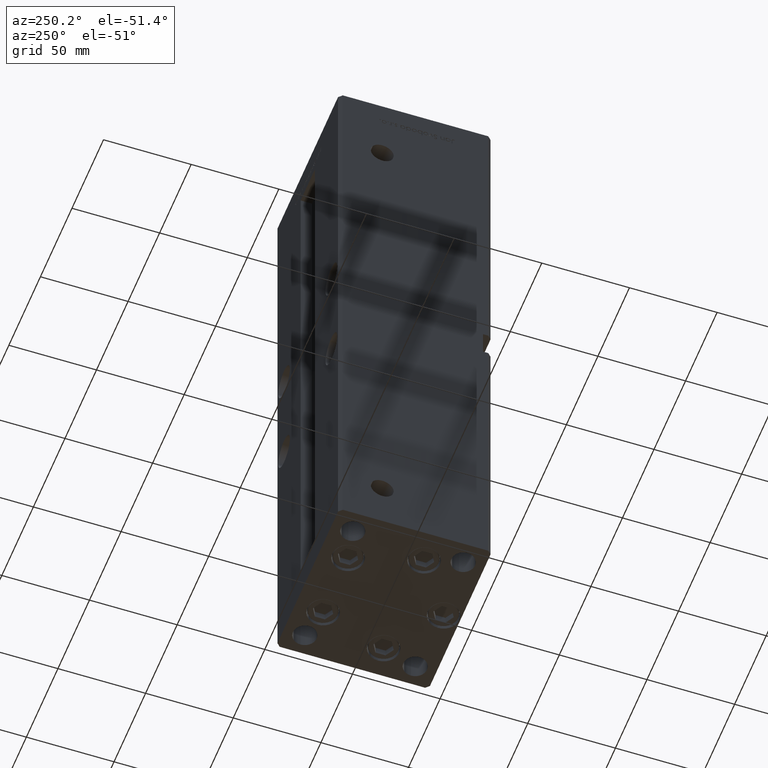
[diagram: clean part render]
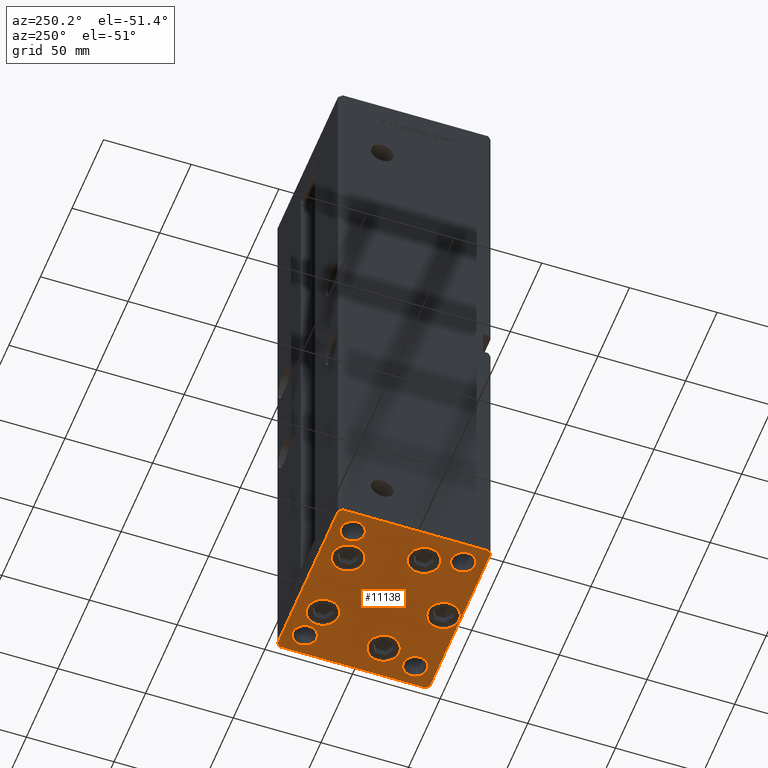
[diagram: same view with one face highlighted and labeled with its STEP entity id]
A machine part, auxiliary view. The second image highlights one B-rep face of the part: STEP entity #11138.
In plain terms, the highlighted planar face has unit normal (0, 0, -1).
Its self-contained STEP definition (entity closure, byte-faithful):
#16 = VERTEX_POINT ( 'NONE', #31558 ) ;
#497 = VERTEX_POINT ( 'NONE', #23567 ) ;
#887 = FACE_BOUND ( 'NONE', #1947, .T. ) ;
#1203 = AXIS2_PLACEMENT_3D ( 'NONE', #43583, #40601, #19136 ) ;
#1256 = ORIENTED_EDGE ( 'NONE', *, *, #10302, .T. ) ;
#1413 = FACE_BOUND ( 'NONE', #30612, .T. ) ;
#1720 = CARTESIAN_POINT ( 'NONE',  ( -50.00000000000000711, 41.49999999999995026, 0.000000000000000000 ) ) ;
#1736 = EDGE_CURVE ( 'NONE', #32446, #43627, #49318, .T. ) ;
#1855 = EDGE_LOOP ( 'NONE', ( #22564, #25273, #41971, #17480, #34941, #20006, #49058, #42830 ) ) ;
#1901 = AXIS2_PLACEMENT_3D ( 'NONE', #1939, #18329, #47078 ) ;
#1937 = VERTEX_POINT ( 'NONE', #29277 ) ;
#1939 = CARTESIAN_POINT ( 'NONE',  ( 19.82068048781373193, 27.62500000000000000, 0.000000000000000000 ) ) ;
#1947 = EDGE_LOOP ( 'NONE', ( #41723, #1256 ) ) ;
#2015 = VERTEX_POINT ( 'NONE', #52942 ) ;
#2156 = CIRCLE ( 'NONE', #13324, 6.749999999999999112 ) ;
#2504 = ORIENTED_EDGE ( 'NONE', *, *, #30601, .T. ) ;
#2887 = DIRECTION ( 'NONE',  ( 0.000000000000000000, -0.000000000000000000, -1.000000000000000000 ) ) ;
#3227 = CARTESIAN_POINT ( 'NONE',  ( 9.000000000000003553, -34.00000000000000000, 0.000000000000000000 ) ) ;
#3575 = AXIS2_PLACEMENT_3D ( 'NONE', #26302, #25781, #43231 ) ;
#3762 = CARTESIAN_POINT ( 'NONE',  ( -10.82068048781373903, 27.62499999999999645, 0.000000000000000000 ) ) ;
#3888 = ORIENTED_EDGE ( 'NONE', *, *, #6793, .T. ) ;
#4565 = CARTESIAN_POINT ( 'NONE',  ( 28.82068048781372838, 27.62500000000000000, 0.000000000000000000 ) ) ;
#4859 = EDGE_CURVE ( 'NONE', #15288, #27219, #27102, .T. ) ;
#4915 = CARTESIAN_POINT ( 'NONE',  ( 32.05550741379015278, -11.33333333333333037, 0.000000000000000000 ) ) ;
#4927 = FACE_BOUND ( 'NONE', #31506, .T. ) ;
#4986 = EDGE_CURVE ( 'NONE', #16297, #48557, #31389, .T. ) ;
#5112 = EDGE_CURVE ( 'NONE', #47752, #39421, #12550, .T. ) ;
#5453 = CARTESIAN_POINT ( 'NONE',  ( 0.000000000000000000, 0.000000000000000000, 0.000000000000000000 ) ) ;
#5545 = ORIENTED_EDGE ( 'NONE', *, *, #45504, .T. ) ;
#5981 = EDGE_CURVE ( 'NONE', #43627, #32446, #43236, .T. ) ;
#6264 = CARTESIAN_POINT ( 'NONE',  ( -47.99999999999999289, -43.50000000000001421, 0.000000000000000000 ) ) ;
#6296 = CARTESIAN_POINT ( 'NONE',  ( -38.00000000000000000, 31.50000000000000000, 0.000000000000000000 ) ) ;
#6341 = CARTESIAN_POINT ( 'NONE',  ( 50.00000000000000000, -41.49999999999999289, 0.000000000000000000 ) ) ;
#6368 = EDGE_CURVE ( 'NONE', #497, #12192, #12323, .T. ) ;
#6630 = CARTESIAN_POINT ( 'NONE',  ( -41.05550741379015278, -11.33333333333333925, 0.000000000000000000 ) ) ;
#6793 = EDGE_CURVE ( 'NONE', #28546, #16, #34418, .T. ) ;
#7060 = EDGE_CURVE ( 'NONE', #36574, #23872, #12162, .T. ) ;
#7642 = DIRECTION ( 'NONE',  ( 1.000000000000000000, 0.000000000000000000, 0.000000000000000000 ) ) ;
#7890 = EDGE_CURVE ( 'NONE', #23872, #41104, #22074, .T. ) ;
#8304 = EDGE_CURVE ( 'NONE', #37842, #12811, #47524, .T. ) ;
#8729 = ORIENTED_EDGE ( 'NONE', *, *, #12973, .F. ) ;
#8743 = CARTESIAN_POINT ( 'NONE',  ( 38.00000000000000000, 31.49999999999999289, 0.000000000000000000 ) ) ;
#9109 = AXIS2_PLACEMENT_3D ( 'NONE', #48449, #37152, #36346 ) ;
#9209 = DIRECTION ( 'NONE',  ( 0.000000000000000000, -0.000000000000000000, -1.000000000000000000 ) ) ;
#9484 = FACE_BOUND ( 'NONE', #16937, .T. ) ;
#9698 = DIRECTION ( 'NONE',  ( 0.000000000000000000, -0.000000000000000000, -1.000000000000000000 ) ) ;
#10302 = EDGE_CURVE ( 'NONE', #27219, #15288, #40458, .T. ) ;
#10742 = AXIS2_PLACEMENT_3D ( 'NONE', #8743, #21080, #42032 ) ;
#10813 = AXIS2_PLACEMENT_3D ( 'NONE', #24264, #52762, #7642 ) ;
#11138 = ADVANCED_FACE ( 'NONE', ( #25314, #14038, #9484, #26106, #50311, #1413, #50836, #4927, #37682, #887 ), #13780, .T. ) ;
#11202 = EDGE_CURVE ( 'NONE', #45479, #16494, #35244, .T. ) ;
#11244 = CIRCLE ( 'NONE', #19840, 6.749999999999999112 ) ;
#12162 = LINE ( 'NONE', #16453, #14684 ) ;
#12192 = VERTEX_POINT ( 'NONE', #34466 ) ;
#12323 = CIRCLE ( 'NONE', #26040, 9.000000000000001776 ) ;
#12550 = CIRCLE ( 'NONE', #19393, 9.000000000000000000 ) ;
#12811 = VERTEX_POINT ( 'NONE', #40683 ) ;
#12965 = EDGE_LOOP ( 'NONE', ( #5545, #3888 ) ) ;
#12973 = EDGE_CURVE ( 'NONE', #47787, #2015, #11244, .T. ) ;
#12979 = CARTESIAN_POINT ( 'NONE',  ( -50.00000000000000000, -41.50000000000000000, 0.000000000000000000 ) ) ;
#13324 = AXIS2_PLACEMENT_3D ( 'NONE', #14153, #25704, #30256 ) ;
#13372 = AXIS2_PLACEMENT_3D ( 'NONE', #16668, #45413, #14161 ) ;
#13780 = PLANE ( 'NONE',  #21536 ) ;
#14038 = FACE_BOUND ( 'NONE', #48034, .T. ) ;
#14153 = CARTESIAN_POINT ( 'NONE',  ( -38.00000000000000000, 31.50000000000000000, 0.000000000000000000 ) ) ;
#14161 = DIRECTION ( 'NONE',  ( 1.000000000000000000, 0.000000000000000000, 0.000000000000000000 ) ) ;
#14194 = EDGE_LOOP ( 'NONE', ( #2504, #42009 ) ) ;
#14366 = AXIS2_PLACEMENT_3D ( 'NONE', #22460, #35082, #38851 ) ;
#14684 = VECTOR ( 'NONE', #40618, 1000.000000000000000 ) ;
#14915 = DIRECTION ( 'NONE',  ( -1.003213576468515193E-15, 1.000000000000000000, 0.000000000000000000 ) ) ;
#15157 = VECTOR ( 'NONE', #43410, 1000.000000000000114 ) ;
#15288 = VERTEX_POINT ( 'NONE', #45906 ) ;
#15560 = DIRECTION ( 'NONE',  ( 0.000000000000000000, -0.000000000000000000, -1.000000000000000000 ) ) ;
#15985 = LINE ( 'NONE', #20546, #47927 ) ;
#16097 = ORIENTED_EDGE ( 'NONE', *, *, #29030, .F. ) ;
#16297 = VERTEX_POINT ( 'NONE', #28397 ) ;
#16453 = CARTESIAN_POINT ( 'NONE',  ( 47.99999999999990763, 43.50000000000000000, 0.000000000000000000 ) ) ;
#16494 = VERTEX_POINT ( 'NONE', #30246 ) ;
#16668 = CARTESIAN_POINT ( 'NONE',  ( 4.163799117101000559E-15, -34.00000000000000000, 0.000000000000000000 ) ) ;
#16936 = CIRCLE ( 'NONE', #14366, 6.749999999999999112 ) ;
#16937 = EDGE_LOOP ( 'NONE', ( #20540, #46685 ) ) ;
#17480 = ORIENTED_EDGE ( 'NONE', *, *, #27488, .T. ) ;
#17529 = CARTESIAN_POINT ( 'NONE',  ( -50.00000000000000711, 41.49999999999995026, 0.000000000000000000 ) ) ;
#17659 = AXIS2_PLACEMENT_3D ( 'NONE', #4915, #9209, #21293 ) ;
#18023 = CARTESIAN_POINT ( 'NONE',  ( 31.25000000000000000, 31.49999999999999289, 0.000000000000000000 ) ) ;
#18329 = DIRECTION ( 'NONE',  ( 0.000000000000000000, -0.000000000000000000, -1.000000000000000000 ) ) ;
#18624 = CIRCLE ( 'NONE', #25477, 9.000000000000000000 ) ;
#18695 = AXIS2_PLACEMENT_3D ( 'NONE', #42221, #34153, #33625 ) ;
#18842 = DIRECTION ( 'NONE',  ( 0.000000000000000000, -0.000000000000000000, -1.000000000000000000 ) ) ;
#19136 = DIRECTION ( 'NONE',  ( 1.000000000000000000, 0.000000000000000000, 0.000000000000000000 ) ) ;
#19279 = DIRECTION ( 'NONE',  ( 1.000000000000000000, 0.000000000000000000, 0.000000000000000000 ) ) ;
#19393 = AXIS2_PLACEMENT_3D ( 'NONE', #32727, #15560, #44572 ) ;
#19840 = AXIS2_PLACEMENT_3D ( 'NONE', #6296, #26425, #38783 ) ;
#20006 = ORIENTED_EDGE ( 'NONE', *, *, #7060, .T. ) ;
#20277 = DIRECTION ( 'NONE',  ( 0.7071067811865463515, 0.7071067811865487940, 0.000000000000000000 ) ) ;
#20540 = ORIENTED_EDGE ( 'NONE', *, *, #29611, .T. ) ;
#20546 = CARTESIAN_POINT ( 'NONE',  ( 47.99999999999999289, -43.50000000000001421, 0.000000000000000000 ) ) ;
#21080 = DIRECTION ( 'NONE',  ( -0.000000000000000000, 0.000000000000000000, 1.000000000000000000 ) ) ;
#21293 = DIRECTION ( 'NONE',  ( 1.000000000000000000, 0.000000000000000000, 0.000000000000000000 ) ) ;
#21360 = EDGE_LOOP ( 'NONE', ( #53092, #23653 ) ) ;
#21536 = AXIS2_PLACEMENT_3D ( 'NONE', #5453, #29881, #30141 ) ;
#22031 = EDGE_CURVE ( 'NONE', #16494, #45479, #34670, .T. ) ;
#22035 = CARTESIAN_POINT ( 'NONE',  ( 38.00000000000000000, -31.49999999999999289, 0.000000000000000000 ) ) ;
#22074 = LINE ( 'NONE', #38462, #32722 ) ;
#22460 = CARTESIAN_POINT ( 'NONE',  ( 38.00000000000000000, -31.49999999999999289, 0.000000000000000000 ) ) ;
#22564 = ORIENTED_EDGE ( 'NONE', *, *, #8304, .T. ) ;
#23232 = CARTESIAN_POINT ( 'NONE',  ( 47.99999999999990763, 43.50000000000000000, 0.000000000000000000 ) ) ;
#23567 = CARTESIAN_POINT ( 'NONE',  ( 41.05550741379015278, -11.33333333333332860, 0.000000000000000000 ) ) ;
#23653 = ORIENTED_EDGE ( 'NONE', *, *, #50867, .T. ) ;
#23872 = VERTEX_POINT ( 'NONE', #48925 ) ;
#23873 = LINE ( 'NONE', #6264, #28763 ) ;
#23903 = CARTESIAN_POINT ( 'NONE',  ( -31.25000000000000000, 31.50000000000000000, 0.000000000000000000 ) ) ;
#24264 = CARTESIAN_POINT ( 'NONE',  ( -37.99999999999999289, -31.50000000000000000, 0.000000000000000000 ) ) ;
#24755 = ORIENTED_EDGE ( 'NONE', *, *, #11202, .T. ) ;
#24843 = EDGE_CURVE ( 'NONE', #12811, #1937, #23873, .T. ) ;
#25079 = ORIENTED_EDGE ( 'NONE', *, *, #29936, .T. ) ;
#25273 = ORIENTED_EDGE ( 'NONE', *, *, #24843, .T. ) ;
#25314 = FACE_BOUND ( 'NONE', #12965, .T. ) ;
#25369 = CARTESIAN_POINT ( 'NONE',  ( 31.25000000000000000, -31.49999999999999289, 0.000000000000000000 ) ) ;
#25477 = AXIS2_PLACEMENT_3D ( 'NONE', #41900, #37857, #37326 ) ;
#25648 = VECTOR ( 'NONE', #46850, 1000.000000000000000 ) ;
#25704 = DIRECTION ( 'NONE',  ( -0.000000000000000000, 0.000000000000000000, 1.000000000000000000 ) ) ;
#25781 = DIRECTION ( 'NONE',  ( 0.000000000000000000, -0.000000000000000000, -1.000000000000000000 ) ) ;
#26040 = AXIS2_PLACEMENT_3D ( 'NONE', #51793, #2887, #19279 ) ;
#26106 = FACE_BOUND ( 'NONE', #32034, .T. ) ;
#26139 = VECTOR ( 'NONE', #14915, 1000.000000000000000 ) ;
#26302 = CARTESIAN_POINT ( 'NONE',  ( -37.99999999999999289, -31.50000000000000000, 0.000000000000000000 ) ) ;
#26425 = DIRECTION ( 'NONE',  ( -0.000000000000000000, 0.000000000000000000, 1.000000000000000000 ) ) ;
#27102 = CIRCLE ( 'NONE', #10813, 6.749999999999999112 ) ;
#27219 = VERTEX_POINT ( 'NONE', #33543 ) ;
#27488 = EDGE_CURVE ( 'NONE', #46258, #50935, #31805, .T. ) ;
#28397 = CARTESIAN_POINT ( 'NONE',  ( 44.75000000000000000, -31.49999999999999289, 0.000000000000000000 ) ) ;
#28546 = VERTEX_POINT ( 'NONE', #3762 ) ;
#28763 = VECTOR ( 'NONE', #44295, 1000.000000000000000 ) ;
#28826 = AXIS2_PLACEMENT_3D ( 'NONE', #22035, #9698, #29304 ) ;
#29030 = EDGE_CURVE ( 'NONE', #2015, #47787, #2156, .T. ) ;
#29277 = CARTESIAN_POINT ( 'NONE',  ( 47.99999999999999289, -43.50000000000001421, 0.000000000000000000 ) ) ;
#29304 = DIRECTION ( 'NONE',  ( 1.000000000000000000, 0.000000000000000000, 0.000000000000000000 ) ) ;
#29496 = CARTESIAN_POINT ( 'NONE',  ( -23.05550741379014923, -11.33333333333333748, 0.000000000000000000 ) ) ;
#29611 = EDGE_CURVE ( 'NONE', #12192, #497, #33076, .T. ) ;
#29881 = DIRECTION ( 'NONE',  ( -0.000000000000000000, 0.000000000000000000, 1.000000000000000000 ) ) ;
#29936 = EDGE_CURVE ( 'NONE', #39421, #47752, #44210, .T. ) ;
#30141 = DIRECTION ( 'NONE',  ( 1.000000000000000000, 0.000000000000000000, 0.000000000000000000 ) ) ;
#30246 = CARTESIAN_POINT ( 'NONE',  ( 10.82068048781373193, 27.62500000000000000, 0.000000000000000000 ) ) ;
#30256 = DIRECTION ( 'NONE',  ( 1.000000000000000000, 0.000000000000000000, 0.000000000000000000 ) ) ;
#30601 = EDGE_CURVE ( 'NONE', #48313, #31279, #45983, .T. ) ;
#30612 = EDGE_LOOP ( 'NONE', ( #49806, #51439 ) ) ;
#31279 = VERTEX_POINT ( 'NONE', #29496 ) ;
#31298 = LINE ( 'NONE', #44192, #15157 ) ;
#31389 = CIRCLE ( 'NONE', #28826, 6.749999999999999112 ) ;
#31506 = EDGE_LOOP ( 'NONE', ( #8729, #16097 ) ) ;
#31558 = CARTESIAN_POINT ( 'NONE',  ( -28.82068048781373548, 27.62499999999999645, 0.000000000000000000 ) ) ;
#31805 = LINE ( 'NONE', #6341, #26139 ) ;
#32034 = EDGE_LOOP ( 'NONE', ( #25079, #35487 ) ) ;
#32446 = VERTEX_POINT ( 'NONE', #33198 ) ;
#32722 = VECTOR ( 'NONE', #45732, 1000.000000000000000 ) ;
#32727 = CARTESIAN_POINT ( 'NONE',  ( 4.163799117101000559E-15, -34.00000000000000000, 0.000000000000000000 ) ) ;
#33076 = CIRCLE ( 'NONE', #17659, 9.000000000000001776 ) ;
#33198 = CARTESIAN_POINT ( 'NONE',  ( 44.75000000000000000, 31.49999999999999289, 0.000000000000000000 ) ) ;
#33543 = CARTESIAN_POINT ( 'NONE',  ( -44.74999999999999289, -31.50000000000000000, 0.000000000000000000 ) ) ;
#33625 = DIRECTION ( 'NONE',  ( 1.000000000000000000, 0.000000000000000000, 0.000000000000000000 ) ) ;
#33954 = DIRECTION ( 'NONE',  ( 0.000000000000000000, -0.000000000000000000, -1.000000000000000000 ) ) ;
#33963 = CARTESIAN_POINT ( 'NONE',  ( 50.00000000000000000, -41.49999999999999289, 0.000000000000000000 ) ) ;
#34153 = DIRECTION ( 'NONE',  ( 0.000000000000000000, -0.000000000000000000, -1.000000000000000000 ) ) ;
#34418 = CIRCLE ( 'NONE', #36992, 9.000000000000000000 ) ;
#34466 = CARTESIAN_POINT ( 'NONE',  ( 23.05550741379014923, -11.33333333333333037, 0.000000000000000000 ) ) ;
#34472 = CARTESIAN_POINT ( 'NONE',  ( -19.82068048781373903, 27.62499999999999645, 0.000000000000000000 ) ) ;
#34670 = CIRCLE ( 'NONE', #46726, 8.999999999999998224 ) ;
#34941 = ORIENTED_EDGE ( 'NONE', *, *, #46047, .T. ) ;
#35082 = DIRECTION ( 'NONE',  ( 0.000000000000000000, -0.000000000000000000, -1.000000000000000000 ) ) ;
#35244 = CIRCLE ( 'NONE', #1901, 8.999999999999998224 ) ;
#35487 = ORIENTED_EDGE ( 'NONE', *, *, #5112, .T. ) ;
#36346 = DIRECTION ( 'NONE',  ( 1.000000000000000000, 0.000000000000000000, 0.000000000000000000 ) ) ;
#36574 = VERTEX_POINT ( 'NONE', #23232 ) ;
#36992 = AXIS2_PLACEMENT_3D ( 'NONE', #34472, #33954, #41482 ) ;
#37152 = DIRECTION ( 'NONE',  ( 0.000000000000000000, -0.000000000000000000, -1.000000000000000000 ) ) ;
#37326 = DIRECTION ( 'NONE',  ( 1.000000000000000000, 0.000000000000000000, 0.000000000000000000 ) ) ;
#37682 = FACE_OUTER_BOUND ( 'NONE', #1855, .T. ) ;
#37842 = VERTEX_POINT ( 'NONE', #12979 ) ;
#37857 = DIRECTION ( 'NONE',  ( 0.000000000000000000, -0.000000000000000000, -1.000000000000000000 ) ) ;
#38462 = CARTESIAN_POINT ( 'NONE',  ( -48.00000000000000711, 43.49999999999996447, 0.000000000000000000 ) ) ;
#38518 = LINE ( 'NONE', #1720, #25648 ) ;
#38756 = VECTOR ( 'NONE', #51557, 1000.000000000000114 ) ;
#38783 = DIRECTION ( 'NONE',  ( 1.000000000000000000, 0.000000000000000000, 0.000000000000000000 ) ) ;
#38851 = DIRECTION ( 'NONE',  ( 1.000000000000000000, 0.000000000000000000, 0.000000000000000000 ) ) ;
#39421 = VERTEX_POINT ( 'NONE', #44594 ) ;
#39457 = CARTESIAN_POINT ( 'NONE',  ( -50.00000000000000000, -41.50000000000000000, 0.000000000000000000 ) ) ;
#39697 = EDGE_CURVE ( 'NONE', #1937, #46258, #15985, .T. ) ;
#39783 = EDGE_CURVE ( 'NONE', #41104, #37842, #38518, .T. ) ;
#40458 = CIRCLE ( 'NONE', #3575, 6.749999999999999112 ) ;
#40601 = DIRECTION ( 'NONE',  ( -0.000000000000000000, 0.000000000000000000, 1.000000000000000000 ) ) ;
#40618 = DIRECTION ( 'NONE',  ( -1.000000000000000000, -3.614007241618350743E-16, 0.000000000000000000 ) ) ;
#40683 = CARTESIAN_POINT ( 'NONE',  ( -47.99999999999999289, -43.50000000000001421, 0.000000000000000000 ) ) ;
#41104 = VERTEX_POINT ( 'NONE', #17529 ) ;
#41130 = ORIENTED_EDGE ( 'NONE', *, *, #22031, .T. ) ;
#41482 = DIRECTION ( 'NONE',  ( 1.000000000000000000, 0.000000000000000000, 0.000000000000000000 ) ) ;
#41723 = ORIENTED_EDGE ( 'NONE', *, *, #4859, .T. ) ;
#41733 = CIRCLE ( 'NONE', #18695, 9.000000000000001776 ) ;
#41900 = CARTESIAN_POINT ( 'NONE',  ( -19.82068048781373903, 27.62499999999999645, 0.000000000000000000 ) ) ;
#41971 = ORIENTED_EDGE ( 'NONE', *, *, #39697, .T. ) ;
#42009 = ORIENTED_EDGE ( 'NONE', *, *, #47612, .T. ) ;
#42032 = DIRECTION ( 'NONE',  ( 1.000000000000000000, 0.000000000000000000, 0.000000000000000000 ) ) ;
#42221 = CARTESIAN_POINT ( 'NONE',  ( -32.05550741379015278, -11.33333333333333925, 0.000000000000000000 ) ) ;
#42830 = ORIENTED_EDGE ( 'NONE', *, *, #39783, .T. ) ;
#43231 = DIRECTION ( 'NONE',  ( 1.000000000000000000, 0.000000000000000000, 0.000000000000000000 ) ) ;
#43236 = CIRCLE ( 'NONE', #1203, 6.749999999999999112 ) ;
#43410 = DIRECTION ( 'NONE',  ( -0.7071067811865474617, 0.7071067811865474617, 0.000000000000000000 ) ) ;
#43583 = CARTESIAN_POINT ( 'NONE',  ( 38.00000000000000000, 31.49999999999999289, 0.000000000000000000 ) ) ;
#43627 = VERTEX_POINT ( 'NONE', #18023 ) ;
#43796 = DIRECTION ( 'NONE',  ( 1.000000000000000000, 0.000000000000000000, 0.000000000000000000 ) ) ;
#44192 = CARTESIAN_POINT ( 'NONE',  ( 49.99999999999992184, 41.49999999999998579, 0.000000000000000000 ) ) ;
#44194 = CARTESIAN_POINT ( 'NONE',  ( 49.99999999999992184, 41.49999999999998579, 0.000000000000000000 ) ) ;
#44210 = CIRCLE ( 'NONE', #13372, 9.000000000000000000 ) ;
#44295 = DIRECTION ( 'NONE',  ( 1.000000000000000000, 0.000000000000000000, 0.000000000000000000 ) ) ;
#44572 = DIRECTION ( 'NONE',  ( 1.000000000000000000, 0.000000000000000000, 0.000000000000000000 ) ) ;
#44594 = CARTESIAN_POINT ( 'NONE',  ( -8.999999999999996447, -34.00000000000000000, 0.000000000000000000 ) ) ;
#45413 = DIRECTION ( 'NONE',  ( 0.000000000000000000, -0.000000000000000000, -1.000000000000000000 ) ) ;
#45479 = VERTEX_POINT ( 'NONE', #4565 ) ;
#45504 = EDGE_CURVE ( 'NONE', #16, #28546, #18624, .T. ) ;
#45732 = DIRECTION ( 'NONE',  ( -0.7071067811865463515, -0.7071067811865487940, 0.000000000000000000 ) ) ;
#45906 = CARTESIAN_POINT ( 'NONE',  ( -31.24999999999999289, -31.50000000000000000, 0.000000000000000000 ) ) ;
#45983 = CIRCLE ( 'NONE', #9109, 9.000000000000001776 ) ;
#46047 = EDGE_CURVE ( 'NONE', #50935, #36574, #31298, .T. ) ;
#46258 = VERTEX_POINT ( 'NONE', #33963 ) ;
#46685 = ORIENTED_EDGE ( 'NONE', *, *, #6368, .T. ) ;
#46726 = AXIS2_PLACEMENT_3D ( 'NONE', #47057, #18842, #43796 ) ;
#46850 = DIRECTION ( 'NONE',  ( 8.360113137237628665E-17, -1.000000000000000000, 0.000000000000000000 ) ) ;
#47057 = CARTESIAN_POINT ( 'NONE',  ( 19.82068048781373193, 27.62500000000000000, 0.000000000000000000 ) ) ;
#47078 = DIRECTION ( 'NONE',  ( 1.000000000000000000, 0.000000000000000000, 0.000000000000000000 ) ) ;
#47524 = LINE ( 'NONE', #39457, #38756 ) ;
#47612 = EDGE_CURVE ( 'NONE', #31279, #48313, #41733, .T. ) ;
#47752 = VERTEX_POINT ( 'NONE', #3227 ) ;
#47787 = VERTEX_POINT ( 'NONE', #23903 ) ;
#47927 = VECTOR ( 'NONE', #20277, 1000.000000000000000 ) ;
#48034 = EDGE_LOOP ( 'NONE', ( #41130, #24755 ) ) ;
#48313 = VERTEX_POINT ( 'NONE', #6630 ) ;
#48449 = CARTESIAN_POINT ( 'NONE',  ( -32.05550741379015278, -11.33333333333333925, 0.000000000000000000 ) ) ;
#48557 = VERTEX_POINT ( 'NONE', #25369 ) ;
#48925 = CARTESIAN_POINT ( 'NONE',  ( -48.00000000000000711, 43.49999999999996447, 0.000000000000000000 ) ) ;
#49058 = ORIENTED_EDGE ( 'NONE', *, *, #7890, .T. ) ;
#49318 = CIRCLE ( 'NONE', #10742, 6.749999999999999112 ) ;
#49806 = ORIENTED_EDGE ( 'NONE', *, *, #1736, .F. ) ;
#50311 = FACE_BOUND ( 'NONE', #14194, .T. ) ;
#50836 = FACE_BOUND ( 'NONE', #21360, .T. ) ;
#50867 = EDGE_CURVE ( 'NONE', #48557, #16297, #16936, .T. ) ;
#50935 = VERTEX_POINT ( 'NONE', #44194 ) ;
#51439 = ORIENTED_EDGE ( 'NONE', *, *, #5981, .F. ) ;
#51557 = DIRECTION ( 'NONE',  ( 0.7071067811865474617, -0.7071067811865474617, 0.000000000000000000 ) ) ;
#51793 = CARTESIAN_POINT ( 'NONE',  ( 32.05550741379015278, -11.33333333333333037, 0.000000000000000000 ) ) ;
#52762 = DIRECTION ( 'NONE',  ( 0.000000000000000000, -0.000000000000000000, -1.000000000000000000 ) ) ;
#52942 = CARTESIAN_POINT ( 'NONE',  ( -44.75000000000000000, 31.50000000000000000, 0.000000000000000000 ) ) ;
#53092 = ORIENTED_EDGE ( 'NONE', *, *, #4986, .T. ) ;